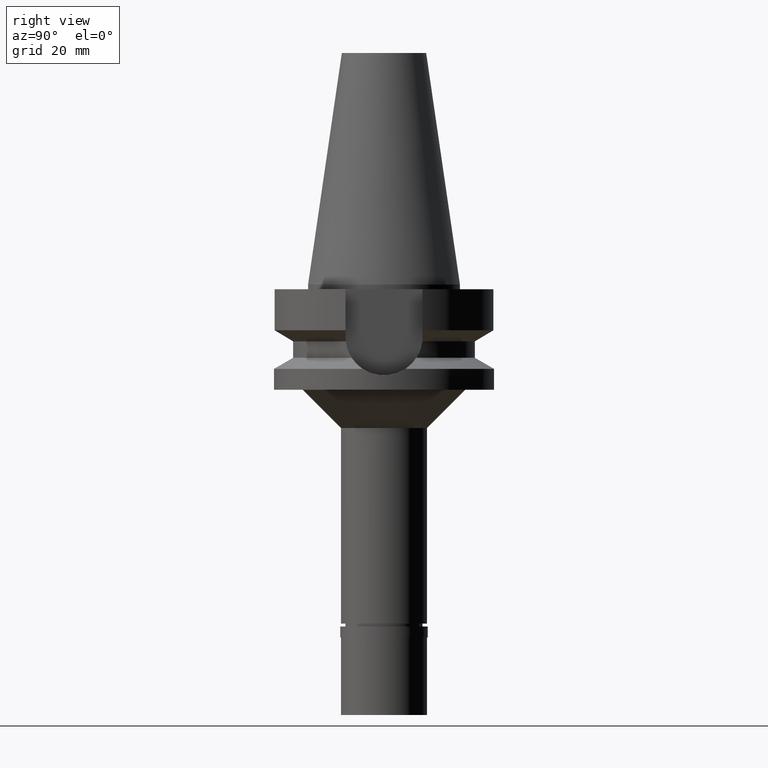
[diagram: clean part render]
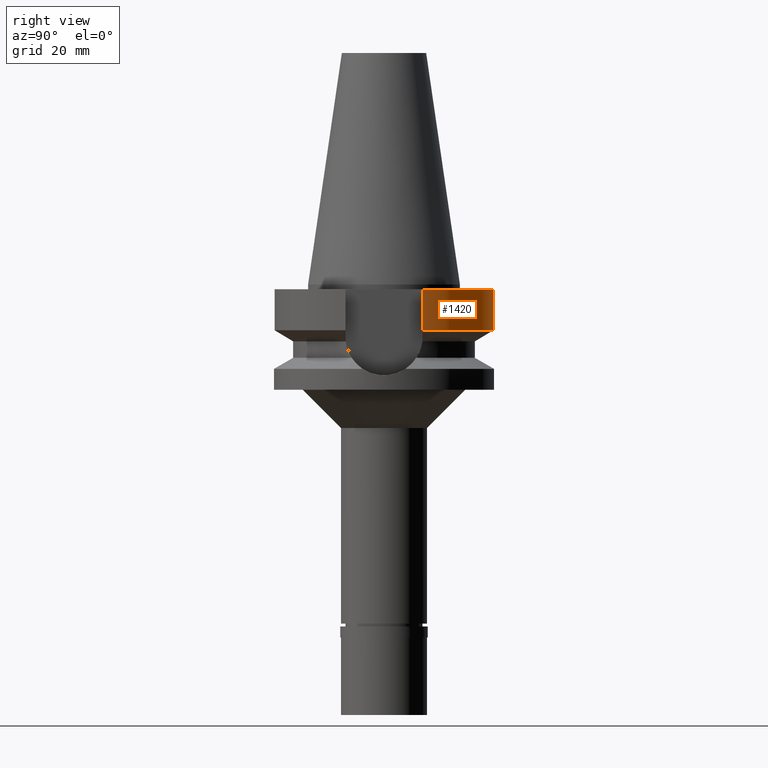
[diagram: same view with one face highlighted and labeled with its STEP entity id]
A machine part, right view. The second image highlights one B-rep face of the part: STEP entity #1420.
In plain terms, the highlighted cylindrical surface (partial cylindrical patch) has radius 23.0018 mm, axis along (0, 0, -1).
Its self-contained STEP definition (entity closure, byte-faithful):
#38 = EDGE_CURVE ( 'NONE', #2426, #2163, #1609, .T. ) ;
#170 = CARTESIAN_POINT ( 'NONE',  ( 0.0000000000000000000, 1.093341284896999988E-14, -9.567208369710998639 ) ) ;
#207 = DIRECTION ( 'NONE',  ( 9.129990689752687760E-08, 2.443791702681914119E-07, -0.9999999999999659162 ) ) ;
#283 = CARTESIAN_POINT ( 'NONE',  ( -21.54715579650000024, 8.050000000000000711, -1.000000000000000000 ) ) ;
#286 = VERTEX_POINT ( 'NONE', #283 ) ;
#384 = DIRECTION ( 'NONE',  ( 0.0000000000000000000, 0.0000000000000000000, -1.000000000000000000 ) ) ;
#390 = VERTEX_POINT ( 'NONE', #847 ) ;
#413 = EDGE_LOOP ( 'NONE', ( #2443, #554, #1402, #613 ) ) ;
#442 = AXIS2_PLACEMENT_3D ( 'NONE', #170, #1045, #1721 ) ;
#467 = EDGE_CURVE ( 'NONE', #286, #390, #2427, .T. ) ;
#554 = ORIENTED_EDGE ( 'NONE', *, *, #562, .T. ) ;
#562 = EDGE_CURVE ( 'NONE', #286, #2163, #1597, .T. ) ;
#613 = ORIENTED_EDGE ( 'NONE', *, *, #1158, .T. ) ;
#659 = DIRECTION ( 'NONE',  ( -1.842091215792997301E-08, 4.930663707377982499E-08, 0.9999999999999985567 ) ) ;
#724 = DIRECTION ( 'NONE',  ( 0.0000000000000000000, 1.000000000000000000, 0.0000000000000000000 ) ) ;
#792 = CYLINDRICAL_SURFACE ( 'NONE', #2822, 23.00179173279000011 ) ;
#847 = CARTESIAN_POINT ( 'NONE',  ( -21.54715501431999769, 8.050002093644000212, -9.567194611494999279 ) ) ;
#888 = VECTOR ( 'NONE', #659, 1000.000000000000114 ) ;
#982 = AXIS2_PLACEMENT_3D ( 'NONE', #1613, #1180, #724 ) ;
#1045 = DIRECTION ( 'NONE',  ( 0.0000000000000000000, 0.0000000000000000000, 1.000000000000000000 ) ) ;
#1158 = EDGE_CURVE ( 'NONE', #2426, #390, #1707, .T. ) ;
#1180 = DIRECTION ( 'NONE',  ( 0.0000000000000000000, 0.0000000000000000000, -1.000000000000000000 ) ) ;
#1324 = CARTESIAN_POINT ( 'NONE',  ( -21.54715579650000024, 8.050000000000000711, -1.000000000000000000 ) ) ;
#1402 = ORIENTED_EDGE ( 'NONE', *, *, #38, .F. ) ;
#1420 = ADVANCED_FACE ( 'NONE', ( #1951 ), #792, .T. ) ;
#1597 = CIRCLE ( 'NONE', #982, 23.00179173279000011 ) ;
#1609 = LINE ( 'NONE', #2003, #888 ) ;
#1613 = CARTESIAN_POINT ( 'NONE',  ( 0.0000000000000000000, 1.899304720797999717E-14, -1.000000000000000000 ) ) ;
#1707 = CIRCLE ( 'NONE', #442, 23.00179173279000011 ) ;
#1721 = DIRECTION ( 'NONE',  ( 0.0000000000000000000, 1.000000000000000000, 0.0000000000000000000 ) ) ;
#1874 = VECTOR ( 'NONE', #207, 1000.000000000000114 ) ;
#1951 = FACE_OUTER_BOUND ( 'NONE', #413, .T. ) ;
#2003 = CARTESIAN_POINT ( 'NONE',  ( 21.54715595432000086, 8.049999577580001286, -9.567211145438999864 ) ) ;
#2163 = VERTEX_POINT ( 'NONE', #2456 ) ;
#2169 = CARTESIAN_POINT ( 'NONE',  ( 21.54715595432000086, 8.049999577580001286, -9.567211145438999864 ) ) ;
#2426 = VERTEX_POINT ( 'NONE', #2169 ) ;
#2427 = LINE ( 'NONE', #1324, #1874 ) ;
#2443 = ORIENTED_EDGE ( 'NONE', *, *, #467, .F. ) ;
#2456 = CARTESIAN_POINT ( 'NONE',  ( 21.54715579650000024, 8.050000000000000711, -1.000000000000000000 ) ) ;
#2635 = DIRECTION ( 'NONE',  ( 0.0000000000000000000, -1.000000000000000000, 0.0000000000000000000 ) ) ;
#2801 = CARTESIAN_POINT ( 'NONE',  ( 0.0000000000000000000, 1.899304720797999717E-14, 55.09000000000000341 ) ) ;
#2822 = AXIS2_PLACEMENT_3D ( 'NONE', #2801, #384, #2635 ) ;